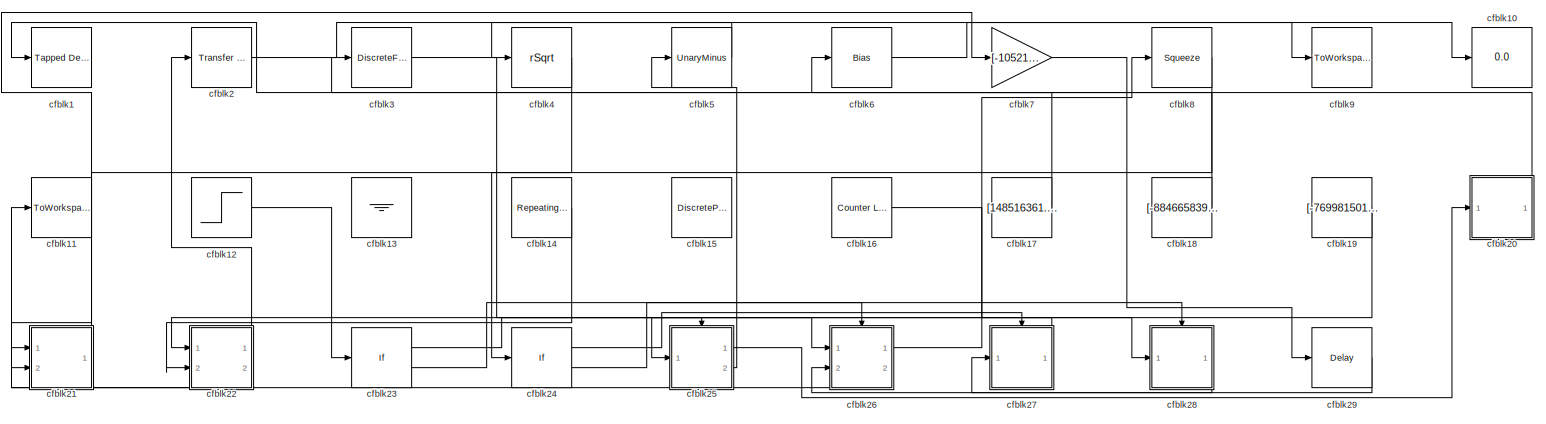
[diagram: root canvas - part 1/1, most of the canvas]
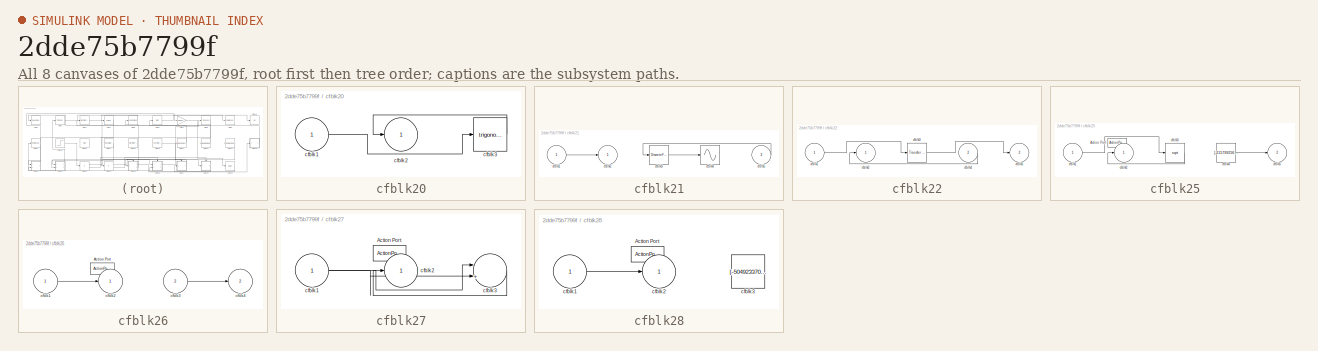
[diagram: thumbnail index - all 8 canvases of the model, root first then tree order]
MODEL slx_2dde75b7799f
KIND model
CONFIG AbsTol = auto
CONFIG EnableMultiTasking = off
CONFIG FixedStep = auto
CONFIG MaxStep = auto
CONFIG MinStep = auto
CONFIG RelTol = 1e-3
CONFIG SampleTimeConstraint = Unconstrained
CONFIG SolverName = VariableStepAuto
CONFIG StartTime = 0.0
CONFIG StopTime = 10.0
BLOCK [Reference] cfblk1  REF=simulink/Discrete/Tapped Delay
  Ports = [1, 1]
  SourceBlock = simulink/Discrete/Tapped Delay
  SourceProductBaseCode = SL
  SourceType = Tapped Delay Line
BLOCK [Display] cfblk10
  Decimation = 1
  Ports = [1]
BLOCK [ToWorkspace] cfblk11
  FixptAsFi = on
  MaxDataPoints = inf
  Ports = [1]
  SampleTime = -1
  SaveFormat = Timeseries
  VariableName = glzesae
BLOCK [Step] cfblk12
  After = [318317455.856129]
  Before = [215133831.393831]
  SampleTime = 0
  Time = [33.000000]
BLOCK [Ground] cfblk13
BLOCK [Reference] cfblk14  REF=simulink/Sources/Repeating
Sequence
  Ports = [0, 1]
  SourceBlock = simulink/Sources/Repeating\nSequence
  SourceProductBaseCode = SL
  SourceType = Repeating table
BLOCK [DiscretePulseGenerator] cfblk15
  Amplitude = [-585443702.440842]
  Period = [34836568.845558]
  PhaseDelay = [7.000000]
  Ports = [0, 1]
  PulseType = Time based
  PulseWidth = 5
BLOCK [Reference] cfblk16  REF=simulink/Sources/Counter
Limited
  Ports = [0, 1]
  SourceBlock = simulink/Sources/Counter\nLimited
  SourceProductBaseCode = SL
  SourceType = Counter Limited
BLOCK [Constant] cfblk17
  SampleTime = 1
  Value = [148516361.298837]
BLOCK [Constant] cfblk18
  SampleTime = 1
  Value = [-884665839.349563]
BLOCK [Constant] cfblk19
  SampleTime = 1
  Value = [-769981501.625403]
BLOCK [Reference] cfblk2  REF=simulink/Discrete/Transfer Fcn
First Order
  Ports = [1, 1]
  SourceBlock = simulink/Discrete/Transfer Fcn\nFirst Order
  SourceProductBaseCode = SL
  SourceType = First Order Transfer Fcn
BLOCK [SubSystem] cfblk20
  Ports = [1, 1]
  RequestExecContextInheritance = off
BLOCK [Inport] cfblk20/cfblk1
BLOCK [Outport] cfblk20/cfblk2
BLOCK [Trigonometry] cfblk20/cfblk3
  Ports = [1, 1]
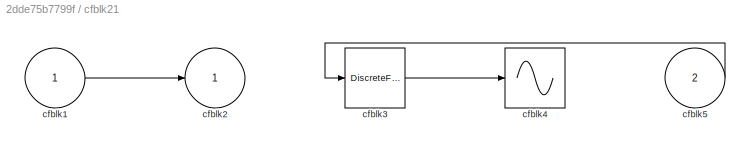
BLOCK [SubSystem] cfblk21
  Ports = [2, 1]
  RequestExecContextInheritance = off
BLOCK [Inport] cfblk21/cfblk1
BLOCK [Outport] cfblk21/cfblk2
BLOCK [DiscreteFilter] cfblk21/cfblk3
  InputPortMap = u0
  Ports = [1, 1]
  SampleTime = 1
BLOCK [Sin] cfblk21/cfblk4
  Ports = [1, 1]
  SampleTime = 0
  TimeSource = Use external signal
BLOCK [Inport] cfblk21/cfblk5
  Port = 2
BLOCK [SubSystem] cfblk22
  Ports = [2, 2]
  RequestExecContextInheritance = off
BLOCK [Inport] cfblk22/cfblk1
BLOCK [Outport] cfblk22/cfblk2
BLOCK [Reference] cfblk22/cfblk3  REF=simulink/Discrete/Transfer Fcn
Lead or Lag
  Ports = [1, 1]
  SourceBlock = simulink/Discrete/Transfer Fcn\nLead or Lag
  SourceProductBaseCode = SL
  SourceType = Lead or Lag Compensator
BLOCK [Inport] cfblk22/cfblk4
  Port = 2
BLOCK [Outport] cfblk22/cfblk5
  Port = 2
BLOCK [If] cfblk23
  IfExpression = u1 >= 0
  Ports = [1, 2]
  SampleTime = 1
BLOCK [If] cfblk24
  IfExpression = u1 >= 0
  Ports = [1, 2]
  SampleTime = 1
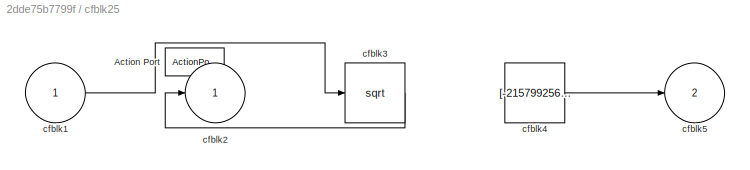
BLOCK [SubSystem] cfblk25
  Ports = [1, 2, 0, 0, 0, 0, 0, 1]
  RequestExecContextInheritance = off
  TreatAsAtomicUnit = on
BLOCK [ActionPort] cfblk25/Action Port
  ActionPortLabel = if(u1 >= 0)
BLOCK [Inport] cfblk25/cfblk1
BLOCK [Outport] cfblk25/cfblk2
BLOCK [Sqrt] cfblk25/cfblk3
BLOCK [Constant] cfblk25/cfblk4
  SampleTime = 1
  Value = [-215799256.208773]
BLOCK [Outport] cfblk25/cfblk5
  Port = 2
BLOCK [SubSystem] cfblk26
  Ports = [2, 2, 0, 0, 0, 0, 0, 1]
  RequestExecContextInheritance = off
  TreatAsAtomicUnit = on
BLOCK [ActionPort] cfblk26/Action Port
  ActionPortLabel = else
BLOCK [Inport] cfblk26/cfblk1
BLOCK [Outport] cfblk26/cfblk2
BLOCK [Inport] cfblk26/cfblk3
  Port = 2
BLOCK [Outport] cfblk26/cfblk4
  Port = 2
BLOCK [SubSystem] cfblk27
  Ports = [1, 1, 0, 0, 0, 0, 0, 1]
  RequestExecContextInheritance = off
  TreatAsAtomicUnit = on
BLOCK [ActionPort] cfblk27/Action Port
  ActionPortLabel = if(u1 >= 0)
BLOCK [Inport] cfblk27/cfblk1
BLOCK [Outport] cfblk27/cfblk2
BLOCK [Sum] cfblk27/cfblk3
  Inputs = |++
  Ports = [2, 1]
BLOCK [SubSystem] cfblk28
  Ports = [1, 1, 0, 0, 0, 0, 0, 1]
  RequestExecContextInheritance = off
  TreatAsAtomicUnit = on
BLOCK [ActionPort] cfblk28/Action Port
  ActionPortLabel = else
BLOCK [Inport] cfblk28/cfblk1
BLOCK [Outport] cfblk28/cfblk2
BLOCK [Constant] cfblk28/cfblk3
  SampleTime = 1
  Value = [-504923370.471336]
BLOCK [Delay] cfblk29
  InputPortMap = u0
  Ports = [1, 1]
  SampleTime = 1
BLOCK [DiscreteFir] cfblk3
  InputPortMap = u0
  OutputPortMap = o0
  Ports = [1, 1]
  SampleTime = 1
BLOCK [Sqrt] cfblk4
  AlgorithmType = Newton-Raphson
  Operator = rSqrt
BLOCK [UnaryMinus] cfblk5
BLOCK [Bias] cfblk6
  Bias = [-532148319.986534]
  SaturateOnIntegerOverflow = off
BLOCK [Gain] cfblk7
  Gain = [-105215174.359598]
BLOCK [Squeeze] cfblk8
BLOCK [ToWorkspace] cfblk9
  FixptAsFi = on
  MaxDataPoints = inf
  Ports = [1]
  SampleTime = -1
  SaveFormat = Timeseries
  VariableName = npsacqw
LINE cfblk12:1 -> cfblk23:1
LINE cfblk14:1 -> cfblk22:2
LINE cfblk16:1 -> cfblk28:1
LINE cfblk17:1 -> cfblk3:1
LINE cfblk18:1 -> cfblk1:1
LINE cfblk19:1 -> cfblk25:1
LINE cfblk20/cfblk1:1 -> cfblk20/cfblk3:1
LINE cfblk20/cfblk3:1 -> cfblk20/cfblk2:1
LINE cfblk20:1 -> cfblk6:1
LINE cfblk21/cfblk1:1 -> cfblk21/cfblk2:1
LINE cfblk21/cfblk3:1 -> cfblk21/cfblk4:1
LINE cfblk21/cfblk5:1 -> cfblk21/cfblk3:1
LINE cfblk21:1 -> cfblk7:1
LINE cfblk22/cfblk1:1 -> cfblk22/cfblk3:1
LINE cfblk22/cfblk3:1 -> cfblk22/cfblk5:1
LINE cfblk22/cfblk4:1 -> cfblk22/cfblk2:1
LINE cfblk22:1 -> cfblk2:1
LINE cfblk22:2 -> cfblk11:1
LINE cfblk23:1 -> cfblk25:ifaction
LINE cfblk23:2 -> cfblk26:ifaction
LINE cfblk24:1 -> cfblk27:ifaction
LINE cfblk24:2 -> cfblk28:ifaction
LINE cfblk25/cfblk1:1 -> cfblk25/cfblk3:1
LINE cfblk25/cfblk3:1 -> cfblk25/cfblk2:1
LINE cfblk25/cfblk4:1 -> cfblk25/cfblk5:1
LINE cfblk25:1 -> cfblk20:1
LINE cfblk25:2 -> cfblk5:1
LINE cfblk26/cfblk1:1 -> cfblk26/cfblk2:1
LINE cfblk26/cfblk3:1 -> cfblk26/cfblk4:1
LINE cfblk26:1 -> cfblk8:1
LINE cfblk26:2 -> cfblk21:2
NET cfblk27/cfblk1:1 -> cfblk27/cfblk3:1, cfblk27/cfblk3:2
LINE cfblk27/cfblk3:1 -> cfblk27/cfblk2:1
LINE cfblk27:1 -> cfblk22:1
LINE cfblk28/cfblk1:1 -> cfblk28/cfblk2:1
LINE cfblk28:1 -> cfblk27:1
LINE cfblk29:1 -> cfblk26:2
LINE cfblk2:1 -> cfblk10:1
LINE cfblk3:1 -> cfblk26:1
LINE cfblk4:1 -> cfblk24:1
LINE cfblk5:1 -> cfblk4:1
LINE cfblk6:1 -> cfblk9:1
LINE cfblk7:1 -> cfblk29:1
LINE cfblk8:1 -> cfblk21:1
note: NET lines group one-source signal fan-out (src -> all destinations, sorted); 1:1 wires keep LINE
